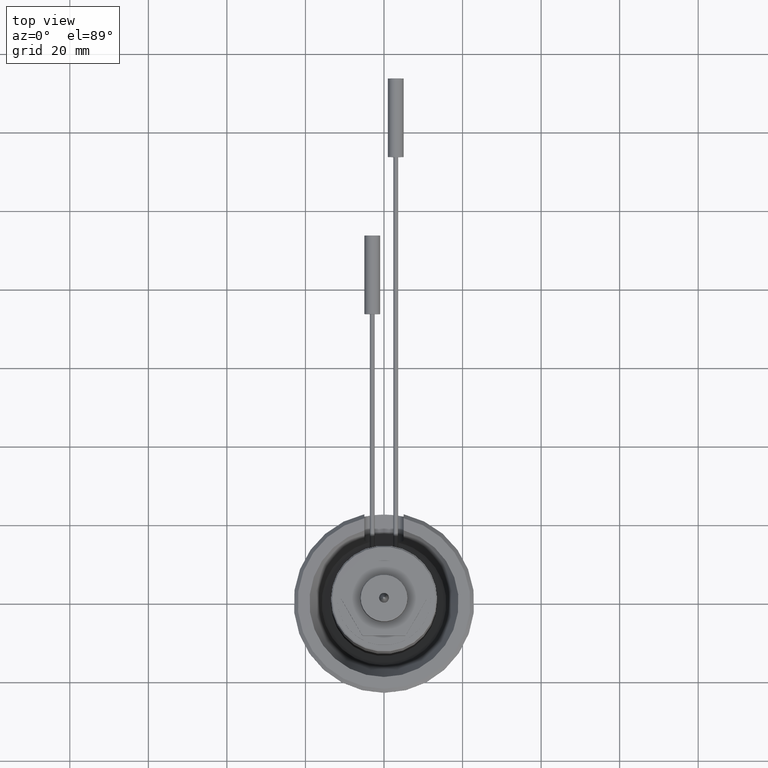
[diagram: clean part render]
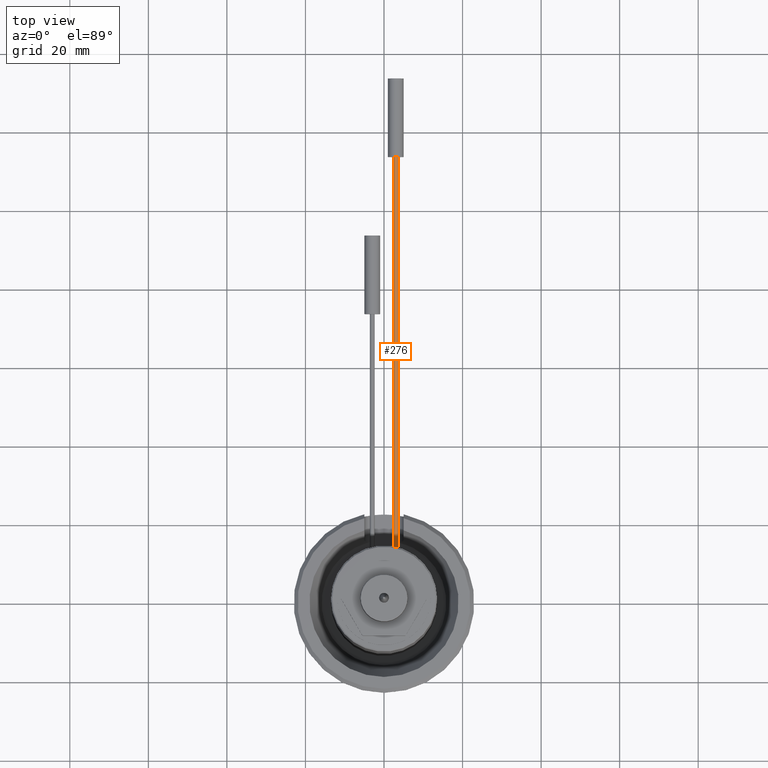
[diagram: same view with one face highlighted and labeled with its STEP entity id]
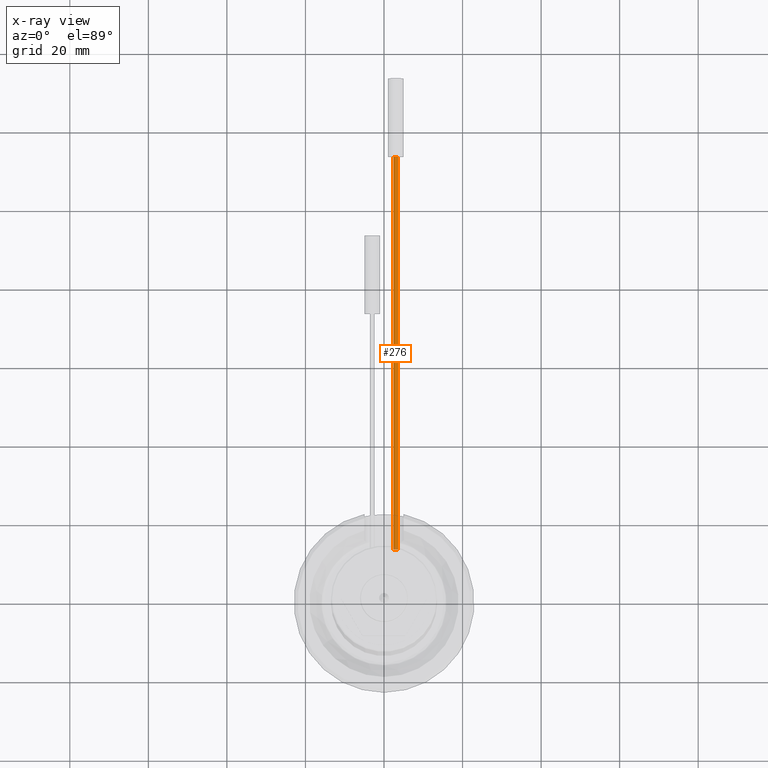
[diagram: x-ray of the same camera — body ghosted, the highlighted face saturated]
A machine part, top view. The second image highlights one B-rep face of the part: STEP entity #276.
The next image is the same camera in x-ray: the body ghosted, the highlighted face saturated — about 1% of this face is hidden behind the body in this view.
In plain terms, the highlighted cylindrical surface (bore or boss wall) has radius 0.6 mm, axis along (0, -1, 0).
Its self-contained STEP definition (entity closure, byte-faithful):
#276=ADVANCED_FACE('',(#374,#375),#351,.T.);
#351=CYLINDRICAL_SURFACE('',#1103,0.6);
#374=FACE_BOUND('',#436,.T.);
#375=FACE_BOUND('',#437,.T.);
#436=EDGE_LOOP('',(#543));
#437=EDGE_LOOP('',(#544));
#543=ORIENTED_EDGE('',*,*,#903,.F.);
#544=ORIENTED_EDGE('',*,*,#904,.T.);
#805=VERTEX_POINT('',#1569);
#806=VERTEX_POINT('',#1571);
#903=EDGE_CURVE('',#805,#805,#1034,.T.);
#904=EDGE_CURVE('',#806,#806,#1035,.T.);
#1034=CIRCLE('',#1101,0.6);
#1035=CIRCLE('',#1102,0.6);
#1101=AXIS2_PLACEMENT_3D('',#1568,#1243,#1244);
#1102=AXIS2_PLACEMENT_3D('',#1570,#1245,#1246);
#1103=AXIS2_PLACEMENT_3D('',#1572,#1247,#1248);
#1243=DIRECTION('',(0.,1.,0.));
#1244=DIRECTION('',(1.,0.,0.));
#1245=DIRECTION('',(0.,1.,0.));
#1246=DIRECTION('',(1.,0.,0.));
#1247=DIRECTION('',(0.,-1.,0.));
#1248=DIRECTION('',(0.,0.,-1.));
#1568=CARTESIAN_POINT('',(3.,113.5,18.5));
#1569=CARTESIAN_POINT('',(3.6,113.5,18.5));
#1570=CARTESIAN_POINT('',(3.,13.5,18.5));
#1571=CARTESIAN_POINT('',(3.6,13.5,18.5));
#1572=CARTESIAN_POINT('',(3.,113.5,18.5));